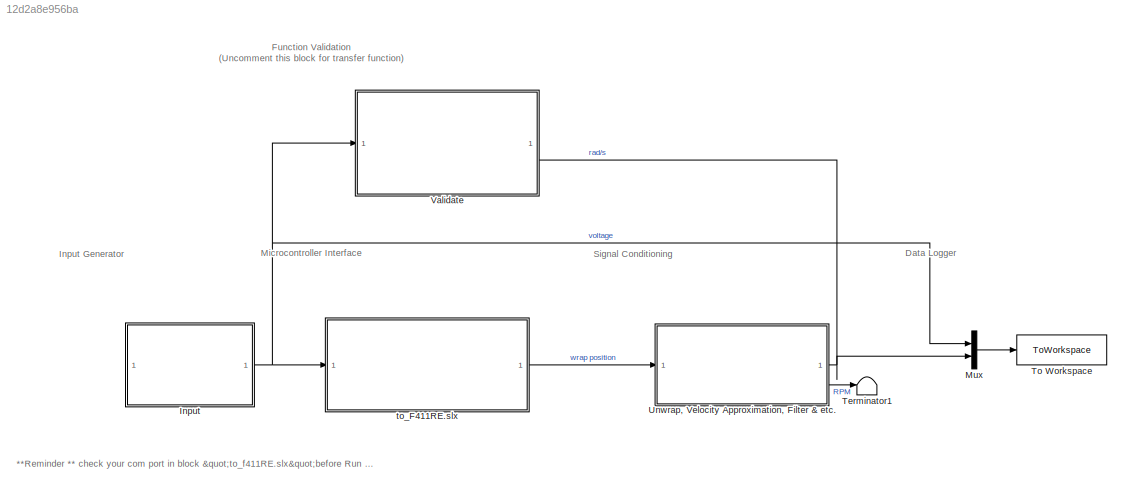
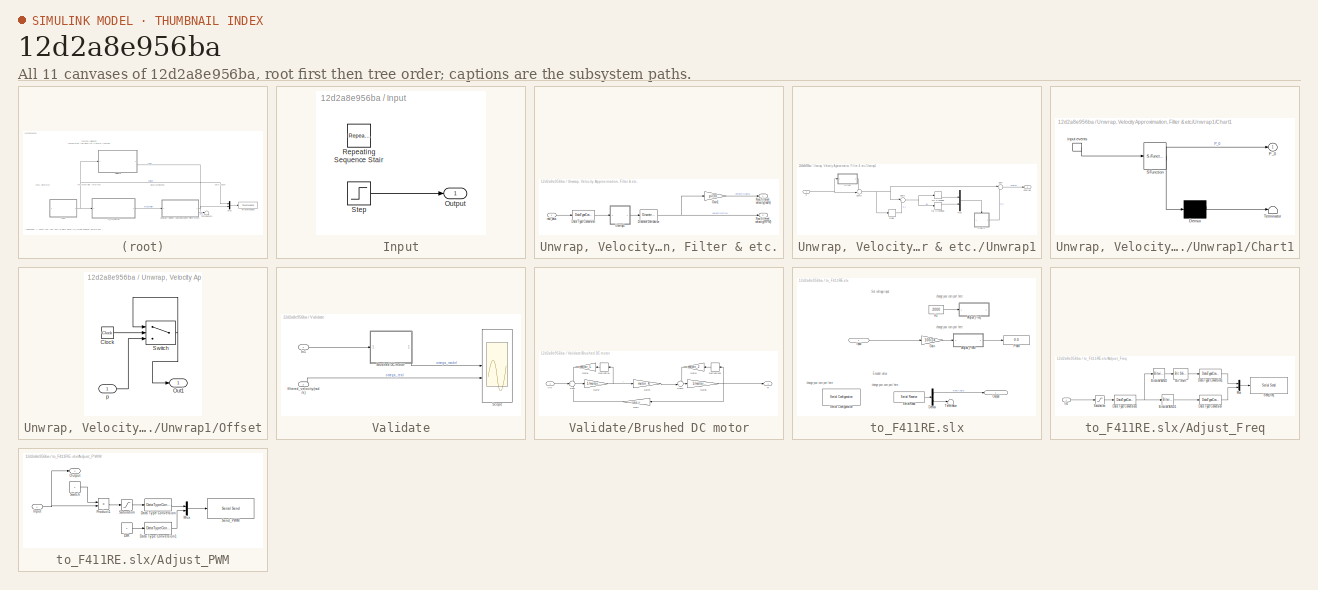
[diagram: thumbnail index - all 11 canvases of the model, root first then tree order]
MODEL slx_12d2a8e956ba
KIND model
CONFIG AbsTol = auto
CONFIG EnableMultiTasking = off
CONFIG FixedStep = 0.01
CONFIG MaxStep = auto
CONFIG MinStep = auto
CONFIG RelTol = 1e-3
CONFIG SampleTimeConstraint = Unconstrained
CONFIG SolverName = FixedStepAuto
CONFIG StartTime = 0.0
CONFIG StopTime = 54
BLOCK [SubSystem] Input
BLOCK [Outport] Input/Output
BLOCK [Reference] Input/Repeating Sequence Stair  REF=simulink/Sources/Repeating
Sequence
Stair
  Commented = on
  SourceBlock = simulink/Sources/Repeating\nSequence\nStair
  SourceType = Repeating Sequence Stair
BLOCK [Step] Input/Step
  SampleTime = 0
BLOCK [Mux] Mux
  DisplayOption = bar
  Inputs = 2
BLOCK [Terminator] Terminator1
BLOCK [ToWorkspace] To Workspace
  FixptAsFi = on
  MaxDataPoints = inf
  SampleTime = -1
  SaveFormat = Timeseries
  VariableName = simout
BLOCK [SubSystem] Unwrap, Velocity Approximation, Filter & etc.
BLOCK [DataTypeConversion] Unwrap, Velocity Approximation, Filter & etc./Data Type Conversion
  OutDataTypeStr = double
  RndMeth = Floor
  SaturateOnIntegerOverflow = off
BLOCK [Reference] Unwrap, Velocity Approximation, Filter & etc./Discrete Derivative  REF=simulink/Discrete/Discrete Derivative
  SourceBlock = simulink/Discrete/Discrete Derivative
  SourceType = Discrete Derivative
BLOCK [Gain] Unwrap, Velocity Approximation, Filter & etc./Gain1
  Gain = pi/30
BLOCK [Outport] Unwrap, Velocity Approximation, Filter & etc./Non-filtered_velocity(RPM)
  Port = 2
BLOCK [Outport] Unwrap, Velocity Approximation, Filter & etc./Non-filtered_velocity(rad//s)
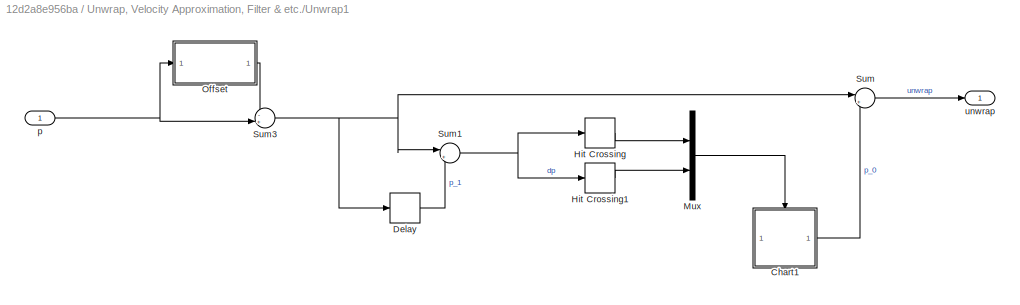
BLOCK [SubSystem] Unwrap, Velocity Approximation, Filter & etc./Unwrap1
BLOCK [SubSystem] Unwrap, Velocity Approximation, Filter & etc./Unwrap1/Chart1
  ErrorFcn = Stateflow.Translate.translate
  PermitHierarchicalResolution = ExplicitOnly
  SFBlockType = Chart
  TreatAsAtomicUnit = on
BLOCK [Demux] Unwrap, Velocity Approximation, Filter & etc./Unwrap1/Chart1/ Demux 
  Outputs = 1
BLOCK [S-Function] Unwrap, Velocity Approximation, Filter & etc./Unwrap1/Chart1/ SFunction 
  EnableBusSupport = on
  FunctionName = sf_sfun
  PortCounts = [1 2]
  SFcnIsStateOwnerBlock = off
  SFunctionDeploymentMode = off
  Tag = Stateflow S-Function 2
BLOCK [Terminator] Unwrap, Velocity Approximation, Filter & etc./Unwrap1/Chart1/ Terminator 
BLOCK [Outport] Unwrap, Velocity Approximation, Filter & etc./Unwrap1/Chart1/P_0
BLOCK [TriggerPort] Unwrap, Velocity Approximation, Filter & etc./Unwrap1/Chart1/input events
  ShowOutputPort = on
  StatesWhenEnabling = held
  VariantControl = (inherit)
BLOCK [Delay] Unwrap, Velocity Approximation, Filter & etc./Unwrap1/Delay
  DelayLength = 1
  InputPortMap = u0
BLOCK [HitCross] Unwrap, Velocity Approximation, Filter & etc./Unwrap1/Hit Crossing
  HitCrossingDirection = rising
  HitCrossingOffset = 0.7*65535
BLOCK [HitCross] Unwrap, Velocity Approximation, Filter & etc./Unwrap1/Hit Crossing1
  HitCrossingDirection = falling
  HitCrossingOffset = -0.7*65535
BLOCK [Mux] Unwrap, Velocity Approximation, Filter & etc./Unwrap1/Mux
  DisplayOption = bar
  Inputs = 2
BLOCK [SubSystem] Unwrap, Velocity Approximation, Filter & etc./Unwrap1/Offset
BLOCK [Clock] Unwrap, Velocity Approximation, Filter & etc./Unwrap1/Offset/Clock
BLOCK [Outport] Unwrap, Velocity Approximation, Filter & etc./Unwrap1/Offset/Out1
BLOCK [Switch] Unwrap, Velocity Approximation, Filter & etc./Unwrap1/Offset/Switch
  Criteria = u2 ~= 0
  InputSameDT = off
  SaturateOnIntegerOverflow = off
BLOCK [Inport] Unwrap, Velocity Approximation, Filter & etc./Unwrap1/Offset/p
BLOCK [Sum] Unwrap, Velocity Approximation, Filter & etc./Unwrap1/Sum
  Inputs = |++
BLOCK [Sum] Unwrap, Velocity Approximation, Filter & etc./Unwrap1/Sum1
  Inputs = |+-
BLOCK [Sum] Unwrap, Velocity Approximation, Filter & etc./Unwrap1/Sum3
  Inputs = -+|
BLOCK [Inport] Unwrap, Velocity Approximation, Filter & etc./Unwrap1/p
BLOCK [Outport] Unwrap, Velocity Approximation, Filter & etc./Unwrap1/unwrap
BLOCK [Inport] Unwrap, Velocity Approximation, Filter & etc./raw_data
BLOCK [SubSystem] Validate
  Commented = on
  PortSchema = {"entries":[{"content":{"sides":[{"content":{"connectorIds":["In1"]},"type":"ConnectorPlacement.EquallySpacedRectSide","uuid":"2e198c62-3f63-40d2-bae8-9fd8fef67e0c"},{"content":{"connectorIds":["In2"],"side":"RIGHT"},"type":"ConnectorPlacement.EquallySpacedRectSide","uuid":"8587534e-14f7-4890-8a03-94178e65376b"},{"content":{"side":"TOP"},"type":"ConnectorPlacement.EquallySpacedRectSide","uuid":"1b...<+221ch>
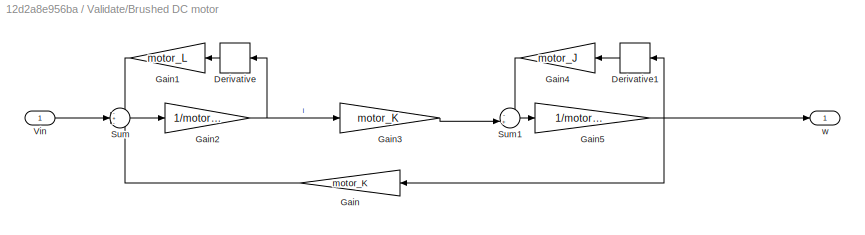
BLOCK [SubSystem] Validate/Brushed DC motor
BLOCK [Derivative] Validate/Brushed DC motor/Derivative
  NameLocation = top
BLOCK [Derivative] Validate/Brushed DC motor/Derivative1
  NameLocation = top
BLOCK [Gain] Validate/Brushed DC motor/Gain
  Gain = motor_K
  NameLocation = top
BLOCK [Gain] Validate/Brushed DC motor/Gain1
  Gain = motor_L
  NameLocation = top
BLOCK [Gain] Validate/Brushed DC motor/Gain2
  Gain = 1/motor_R
BLOCK [Gain] Validate/Brushed DC motor/Gain3
  Gain = motor_K
BLOCK [Gain] Validate/Brushed DC motor/Gain4
  Gain = motor_J
  NameLocation = top
BLOCK [Gain] Validate/Brushed DC motor/Gain5
  Gain = 1/motor_B
BLOCK [Sum] Validate/Brushed DC motor/Sum
  Inputs = -+-
BLOCK [Sum] Validate/Brushed DC motor/Sum1
  Inputs = -+|
BLOCK [Inport] Validate/Brushed DC motor/Vin
BLOCK [Outport] Validate/Brushed DC motor/w
BLOCK [Inport] Validate/In1
BLOCK [Scope] Validate/Scope
  Floating = off
  NumInputPorts = 2
  ScopeSpecificationString = Simulink.scopes.TimeScopeBlockCfg('CurrentConfiguration', extmgr.ConfigurationSet(extmgr.Configuration('Core','General UI',true),extmgr.Configuration('Core','Source UI',true),extmgr.Configuration('Sources','WiredSimulink',true),extmgr.Configuration('Visuals','Time Domain',true,'SerializedDisplays',{struct('MinYLimReal','-36.63244','MaxYLimReal','152.2423','YLabelReal','','MinYLimMag','0.00000','Ma...<+1454ch>
BLOCK [Inport] Validate/filtered_velocity(rad//s)
  Port = 2
BLOCK [SubSystem] to_F411RE.slx
BLOCK [SubSystem] to_F411RE.slx/Adjust_Freq
BLOCK [Reference] to_F411RE.slx/Adjust_Freq/Bit Shift  REF=hdlsllib/Logic and Bit
Operations/Bit Shift
  SourceBlock = hdlsllib/Logic and Bit\nOperations/Bit Shift
  SourceType = Bit Shift
BLOCK [Reference] to_F411RE.slx/Adjust_Freq/Bitwise AND  REF=simulink/Logic and Bit
Operations/Bitwise
Operator
  SourceBlock = simulink/Logic and Bit\nOperations/Bitwise\nOperator
  SourceType = Bitwise Operator
BLOCK [Reference] to_F411RE.slx/Adjust_Freq/Bitwise AND1  REF=simulink/Logic and Bit
Operations/Bitwise
Operator
  SourceBlock = simulink/Logic and Bit\nOperations/Bitwise\nOperator
  SourceType = Bitwise Operator
BLOCK [DataTypeConversion] to_F411RE.slx/Adjust_Freq/Data Type Conversion
  OutDataTypeStr = uint8
  RndMeth = Floor
  SaturateOnIntegerOverflow = off
BLOCK [DataTypeConversion] to_F411RE.slx/Adjust_Freq/Data Type Conversion1
  OutDataTypeStr = uint8
  RndMeth = Floor
  SaturateOnIntegerOverflow = off
BLOCK [DataTypeConversion] to_F411RE.slx/Adjust_Freq/Data Type Conversion2
  OutDataTypeStr = uint16
  RndMeth = Floor
  SaturateOnIntegerOverflow = off
BLOCK [Inport] to_F411RE.slx/Adjust_Freq/In1
BLOCK [Mux] to_F411RE.slx/Adjust_Freq/Mux
  DisplayOption = bar
  Inputs = 2
BLOCK [Saturate] to_F411RE.slx/Adjust_Freq/Saturation
  LowerLimit = 5
  UpperLimit = 20000
BLOCK [Reference] to_F411RE.slx/Adjust_Freq/Send_freq  REF=instrumentseriallib/Serial Send
  Priority = 1
  SourceBlock = instrumentseriallib/Serial Send
  SourceType = system.SerialSend
BLOCK [SubSystem] to_F411RE.slx/Adjust_PWM
BLOCK [Constant] to_F411RE.slx/Adjust_PWM/DIR 
  Value = 2
BLOCK [DataTypeConversion] to_F411RE.slx/Adjust_PWM/Data Type Conversion
  OutDataTypeStr = uint8
  RndMeth = Floor
  SaturateOnIntegerOverflow = off
BLOCK [DataTypeConversion] to_F411RE.slx/Adjust_PWM/Data Type Conversion1
  OutDataTypeStr = uint8
  RndMeth = Floor
  SaturateOnIntegerOverflow = off
BLOCK [Inport] to_F411RE.slx/Adjust_PWM/Input
BLOCK [Mux] to_F411RE.slx/Adjust_PWM/Mux
  DisplayOption = bar
  Inputs = 2
BLOCK [Outport] to_F411RE.slx/Adjust_PWM/Output
BLOCK [Product] to_F411RE.slx/Adjust_PWM/Product1
BLOCK [Saturate] to_F411RE.slx/Adjust_PWM/Saturation
  LowerLimit = 0
  UpperLimit = 200
BLOCK [Reference] to_F411RE.slx/Adjust_PWM/Send_PWM  REF=instrumentseriallib/Serial Send
  Priority = 1
  SourceBlock = instrumentseriallib/Serial Send
  SourceType = system.SerialSend
BLOCK [Constant] to_F411RE.slx/Adjust_PWM/Switch
BLOCK [Demux] to_F411RE.slx/Demux
  Outputs = 2
BLOCK [Gain] to_F411RE.slx/Gain
  Gain = 100/24
  OutDataTypeStr = int8
BLOCK [Constant] to_F411RE.slx/Hz
  OutDataTypeStr = double
  Value = 2000
BLOCK [Inport] to_F411RE.slx/Input
  IconDisplay = Port number and signal name
BLOCK [Outport] to_F411RE.slx/Output
  IconDisplay = Port number and signal name
BLOCK [Display] to_F411RE.slx/PWM
  Decimation = 1
BLOCK [Reference] to_F411RE.slx/Serial Configuration  REF=instrumentseriallib/Serial Configuration
  Priority = -200000
  SourceBlock = instrumentseriallib/Serial Configuration
  SourceType = system.SerialConfiguration
BLOCK [Reference] to_F411RE.slx/SerialRead  REF=instrumentseriallib/Serial Receive
  LibrarySourceBlock = instrumentlib/Serial Receive
  Priority = 1
  SourceBlock = instrumentseriallib/Serial Receive
  SourceType = system.SerialReceive
BLOCK [Terminator] to_F411RE.slx/Terminator
ANNOTATION (root): ** Reminder ** check your com port in block "to_f411RE.slx"before Run the model!!
ANNOTATION (root): Data Logger
ANNOTATION (root): Function Validation (Uncomment this block for transfer function)
ANNOTATION (root): Input Generator
ANNOTATION (root): Microcontroller Interface
ANNOTATION (root): Signal Conditioning
ANNOTATION to_F411RE.slx: Encoder value
ANNOTATION to_F411RE.slx: Set voltage input
ANNOTATION to_F411RE.slx: change your com port here
LINE Input/Step:1 -> Input/Output:1
NET Input:1 -> Mux:1, Validate:1, to_F411RE.slx:1
LINE Mux:1 -> To Workspace:1
LINE Unwrap, Velocity Approximation, Filter & etc./Data Type Conversion:1 -> Unwrap, Velocity Approximation, Filter & etc./Unwrap1:1
NET Unwrap, Velocity Approximation, Filter & etc./Discrete Derivative:1 -> Unwrap, Velocity Approximation, Filter & etc./Gain1:1, Unwrap, Velocity Approximation, Filter & etc./Non-filtered_velocity(RPM):1
LINE Unwrap, Velocity Approximation, Filter & etc./Gain1:1 -> Unwrap, Velocity Approximation, Filter & etc./Non-filtered_velocity(rad//s):1
LINE Unwrap, Velocity Approximation, Filter & etc./Unwrap1/Chart1:1 -> Unwrap, Velocity Approximation, Filter & etc./Unwrap1/Sum:2
LINE Unwrap, Velocity Approximation, Filter & etc./Unwrap1/Delay:1 -> Unwrap, Velocity Approximation, Filter & etc./Unwrap1/Sum1:2
LINE Unwrap, Velocity Approximation, Filter & etc./Unwrap1/Hit Crossing1:1 -> Unwrap, Velocity Approximation, Filter & etc./Unwrap1/Mux:2
LINE Unwrap, Velocity Approximation, Filter & etc./Unwrap1/Hit Crossing:1 -> Unwrap, Velocity Approximation, Filter & etc./Unwrap1/Mux:1
LINE Unwrap, Velocity Approximation, Filter & etc./Unwrap1/Mux:1 -> Unwrap, Velocity Approximation, Filter & etc./Unwrap1/Chart1:trigger
LINE Unwrap, Velocity Approximation, Filter & etc./Unwrap1/Offset/Clock:1 -> Unwrap, Velocity Approximation, Filter & etc./Unwrap1/Offset/Switch:2
NET Unwrap, Velocity Approximation, Filter & etc./Unwrap1/Offset/Switch:1 -> Unwrap, Velocity Approximation, Filter & etc./Unwrap1/Offset/Out1:1, Unwrap, Velocity Approximation, Filter & etc./Unwrap1/Offset/Switch:1
LINE Unwrap, Velocity Approximation, Filter & etc./Unwrap1/Offset/p:1 -> Unwrap, Velocity Approximation, Filter & etc./Unwrap1/Offset/Switch:3
LINE Unwrap, Velocity Approximation, Filter & etc./Unwrap1/Offset:1 -> Unwrap, Velocity Approximation, Filter & etc./Unwrap1/Sum3:1
NET Unwrap, Velocity Approximation, Filter & etc./Unwrap1/Sum1:1 -> Unwrap, Velocity Approximation, Filter & etc./Unwrap1/Hit Crossing1:1, Unwrap, Velocity Approximation, Filter & etc./Unwrap1/Hit Crossing:1
NET Unwrap, Velocity Approximation, Filter & etc./Unwrap1/Sum3:1 -> Unwrap, Velocity Approximation, Filter & etc./Unwrap1/Delay:1, Unwrap, Velocity Approximation, Filter & etc./Unwrap1/Sum1:1, Unwrap, Velocity Approximation, Filter & etc./Unwrap1/Sum:1
LINE Unwrap, Velocity Approximation, Filter & etc./Unwrap1/Sum:1 -> Unwrap, Velocity Approximation, Filter & etc./Unwrap1/unwrap:1
NET Unwrap, Velocity Approximation, Filter & etc./Unwrap1/p:1 -> Unwrap, Velocity Approximation, Filter & etc./Unwrap1/Offset:1, Unwrap, Velocity Approximation, Filter & etc./Unwrap1/Sum3:2
LINE Unwrap, Velocity Approximation, Filter & etc./Unwrap1:1 -> Unwrap, Velocity Approximation, Filter & etc./Discrete Derivative:1
LINE Unwrap, Velocity Approximation, Filter & etc./raw_data:1 -> Unwrap, Velocity Approximation, Filter & etc./Data Type Conversion:1
NET Unwrap, Velocity Approximation, Filter & etc.:1 -> Mux:2, Validate:2
LINE Unwrap, Velocity Approximation, Filter & etc.:2 -> Terminator1:1
LINE Validate/Brushed DC motor/Derivative1:1 -> Validate/Brushed DC motor/Gain4:1
LINE Validate/Brushed DC motor/Derivative:1 -> Validate/Brushed DC motor/Gain1:1
LINE Validate/Brushed DC motor/Gain1:1 -> Validate/Brushed DC motor/Sum:1
NET Validate/Brushed DC motor/Gain2:1 -> Validate/Brushed DC motor/Derivative:1, Validate/Brushed DC motor/Gain3:1
LINE Validate/Brushed DC motor/Gain3:1 -> Validate/Brushed DC motor/Sum1:2
LINE Validate/Brushed DC motor/Gain4:1 -> Validate/Brushed DC motor/Sum1:1
NET Validate/Brushed DC motor/Gain5:1 -> Validate/Brushed DC motor/Derivative1:1, Validate/Brushed DC motor/Gain:1, Validate/Brushed DC motor/w:1
LINE Validate/Brushed DC motor/Gain:1 -> Validate/Brushed DC motor/Sum:3
LINE Validate/Brushed DC motor/Sum1:1 -> Validate/Brushed DC motor/Gain5:1
LINE Validate/Brushed DC motor/Sum:1 -> Validate/Brushed DC motor/Gain2:1
LINE Validate/Brushed DC motor/Vin:1 -> Validate/Brushed DC motor/Sum:2
LINE Validate/Brushed DC motor:1 -> Validate/Scope:1
LINE Validate/In1:1 -> Validate/Brushed DC motor:1
LINE Validate/filtered_velocity(rad//s):1 -> Validate/Scope:2
LINE to_F411RE.slx/Adjust_Freq/Bit Shift:1 -> to_F411RE.slx/Adjust_Freq/Data Type Conversion1:1
LINE to_F411RE.slx/Adjust_Freq/Bitwise AND1:1 -> to_F411RE.slx/Adjust_Freq/Data Type Conversion:1
LINE to_F411RE.slx/Adjust_Freq/Bitwise AND:1 -> to_F411RE.slx/Adjust_Freq/Bit Shift:1
LINE to_F411RE.slx/Adjust_Freq/Data Type Conversion1:1 -> to_F411RE.slx/Adjust_Freq/Mux:1
NET to_F411RE.slx/Adjust_Freq/Data Type Conversion2:1 -> to_F411RE.slx/Adjust_Freq/Bitwise AND1:1, to_F411RE.slx/Adjust_Freq/Bitwise AND:1
LINE to_F411RE.slx/Adjust_Freq/Data Type Conversion:1 -> to_F411RE.slx/Adjust_Freq/Mux:2
LINE to_F411RE.slx/Adjust_Freq/In1:1 -> to_F411RE.slx/Adjust_Freq/Saturation:1
LINE to_F411RE.slx/Adjust_Freq/Mux:1 -> to_F411RE.slx/Adjust_Freq/Send_freq:1
LINE to_F411RE.slx/Adjust_Freq/Saturation:1 -> to_F411RE.slx/Adjust_Freq/Data Type Conversion2:1
LINE to_F411RE.slx/Adjust_PWM/DIR :1 -> to_F411RE.slx/Adjust_PWM/Data Type Conversion1:1
LINE to_F411RE.slx/Adjust_PWM/Data Type Conversion1:1 -> to_F411RE.slx/Adjust_PWM/Mux:2
LINE to_F411RE.slx/Adjust_PWM/Data Type Conversion:1 -> to_F411RE.slx/Adjust_PWM/Mux:1
NET to_F411RE.slx/Adjust_PWM/Input:1 -> to_F411RE.slx/Adjust_PWM/Output:1, to_F411RE.slx/Adjust_PWM/Product1:2
LINE to_F411RE.slx/Adjust_PWM/Mux:1 -> to_F411RE.slx/Adjust_PWM/Send_PWM:1
LINE to_F411RE.slx/Adjust_PWM/Product1:1 -> to_F411RE.slx/Adjust_PWM/Saturation:1
LINE to_F411RE.slx/Adjust_PWM/Saturation:1 -> to_F411RE.slx/Adjust_PWM/Data Type Conversion:1
LINE to_F411RE.slx/Adjust_PWM/Switch:1 -> to_F411RE.slx/Adjust_PWM/Product1:1
LINE to_F411RE.slx/Adjust_PWM:1 -> to_F411RE.slx/PWM:1
LINE to_F411RE.slx/Demux:1 -> to_F411RE.slx/Output:1
LINE to_F411RE.slx/Demux:2 -> to_F411RE.slx/Terminator:1
LINE to_F411RE.slx/Gain:1 -> to_F411RE.slx/Adjust_PWM:1
LINE to_F411RE.slx/Hz:1 -> to_F411RE.slx/Adjust_Freq:1
LINE to_F411RE.slx/Input:1 -> to_F411RE.slx/Gain:1
LINE to_F411RE.slx/SerialRead:1 -> to_F411RE.slx/Demux:1
LINE to_F411RE.slx:1 -> Unwrap, Velocity Approximation, Filter & etc.:1
note: NET lines group one-source signal fan-out (src -> all destinations, sorted); 1:1 wires keep LINE
CHART Unwrap, Velocity Approximation, Filter & etc./Unwrap1/Chart1 states=1 transitions=3
  STATE_LABEL 'initial\n\n'
CHART  states=0 transitions=0
